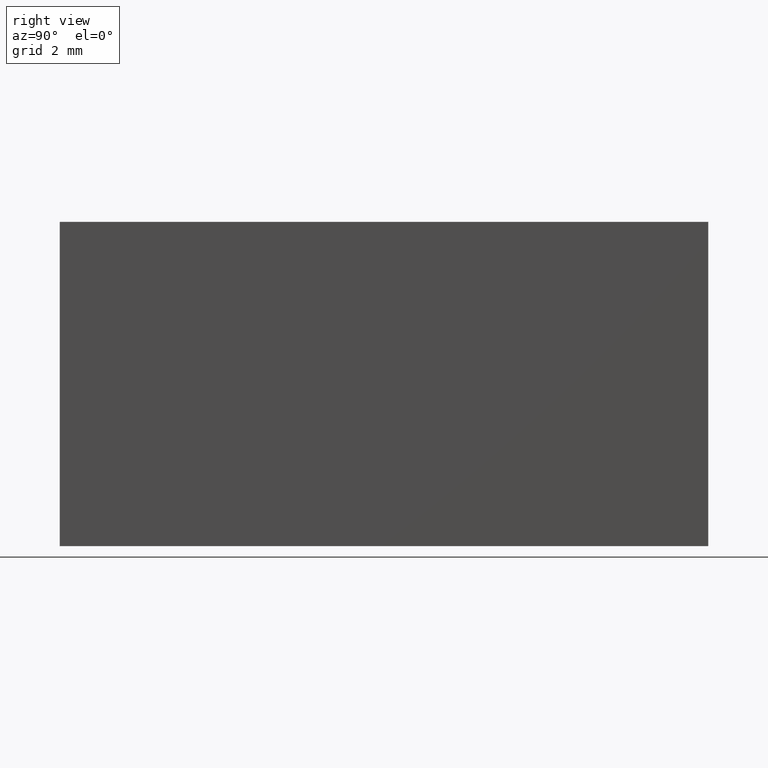
[diagram: clean part render]
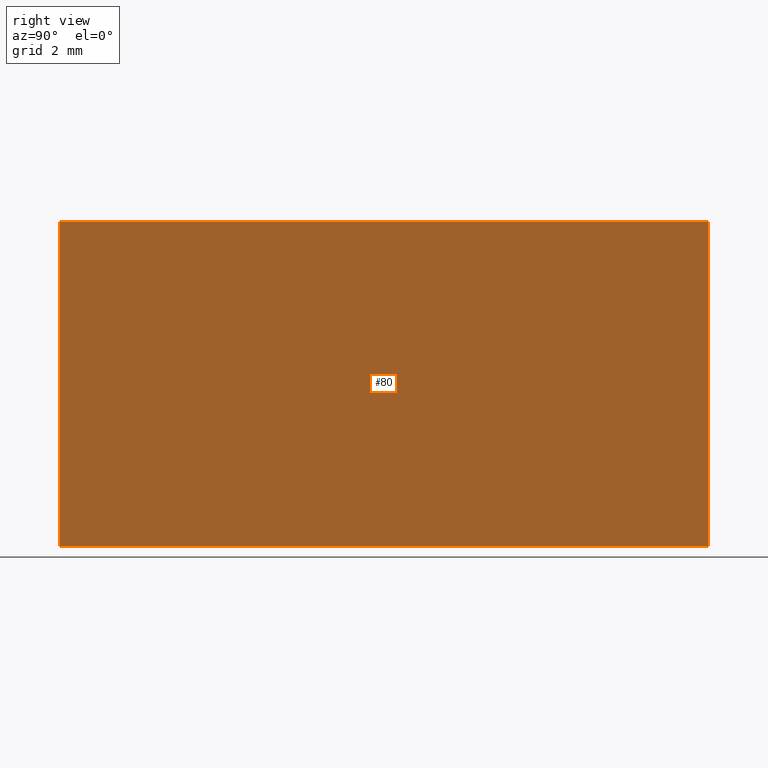
[diagram: same view with one face highlighted and labeled with its STEP entity id]
A machine part, right view. The second image highlights one B-rep face of the part: STEP entity #80.
In plain terms, the highlighted planar face has unit normal (-1, 0, 0).
Its self-contained STEP definition (entity closure, byte-faithful):
#11 = CARTESIAN_POINT ( 'NONE',  ( 0.0000000000000000000, 0.0000000000000000000, 0.0000000000000000000 ) ) ;
#12 = CARTESIAN_POINT ( 'NONE',  ( 0.0000000000000000000, 20.00000000000000000, 0.0000000000000000000 ) ) ;
#15 = CARTESIAN_POINT ( 'NONE',  ( 0.0000000000000000000, 0.0000000000000000000, 0.0000000000000000000 ) ) ;
#22 = VECTOR ( 'NONE', #32, 1000.000000000000000 ) ;
#27 = CARTESIAN_POINT ( 'NONE',  ( 6.123233995736766300E-016, 0.0000000000000000000, 10.00000000000000000 ) ) ;
#29 = DIRECTION ( 'NONE',  ( -0.0000000000000000000, -1.000000000000000000, -0.0000000000000000000 ) ) ;
#32 = DIRECTION ( 'NONE',  ( -6.123233995736766000E-017, -0.0000000000000000000, -1.000000000000000000 ) ) ;
#42 = CARTESIAN_POINT ( 'NONE',  ( 0.0000000000000000000, 20.00000000000000000, 0.0000000000000000000 ) ) ;
#44 = LINE ( 'NONE', #11, #22 ) ;
#57 = VERTEX_POINT ( 'NONE', #15 ) ;
#63 = CARTESIAN_POINT ( 'NONE',  ( 6.123233995736766300E-016, 20.00000000000000000, 10.00000000000000000 ) ) ;
#65 = ORIENTED_EDGE ( 'NONE', *, *, #149, .T. ) ;
#80 = ADVANCED_FACE ( 'NONE', ( #172 ), #112, .F. ) ;
#93 = EDGE_CURVE ( 'NONE', #157, #95, #148, .T. ) ;
#94 = LINE ( 'NONE', #105, #129 ) ;
#95 = VERTEX_POINT ( 'NONE', #142 ) ;
#100 = ORIENTED_EDGE ( 'NONE', *, *, #93, .F. ) ;
#101 = EDGE_CURVE ( 'NONE', #95, #57, #189, .T. ) ;
#105 = CARTESIAN_POINT ( 'NONE',  ( 6.123233995736766300E-016, 20.00000000000000000, 10.00000000000000000 ) ) ;
#109 = VECTOR ( 'NONE', #188, 1000.000000000000000 ) ;
#112 = PLANE ( 'NONE',  #161 ) ;
#124 = EDGE_LOOP ( 'NONE', ( #197, #132, #100, #65 ) ) ;
#129 = VECTOR ( 'NONE', #194, 1000.000000000000000 ) ;
#132 = ORIENTED_EDGE ( 'NONE', *, *, #101, .F. ) ;
#140 = VECTOR ( 'NONE', #29, 1000.000000000000000 ) ;
#142 = CARTESIAN_POINT ( 'NONE',  ( 0.0000000000000000000, 20.00000000000000000, 0.0000000000000000000 ) ) ;
#143 = DIRECTION ( 'NONE',  ( 6.123233995736766000E-017, 0.0000000000000000000, 1.000000000000000000 ) ) ;
#148 = LINE ( 'NONE', #153, #109 ) ;
#149 = EDGE_CURVE ( 'NONE', #157, #165, #94, .T. ) ;
#153 = CARTESIAN_POINT ( 'NONE',  ( 0.0000000000000000000, 20.00000000000000000, 0.0000000000000000000 ) ) ;
#157 = VERTEX_POINT ( 'NONE', #63 ) ;
#161 = AXIS2_PLACEMENT_3D ( 'NONE', #12, #171, #143 ) ;
#165 = VERTEX_POINT ( 'NONE', #27 ) ;
#168 = EDGE_CURVE ( 'NONE', #165, #57, #44, .T. ) ;
#171 = DIRECTION ( 'NONE',  ( -1.000000000000000000, 0.0000000000000000000, 6.123233995736766000E-017 ) ) ;
#172 = FACE_OUTER_BOUND ( 'NONE', #124, .T. ) ;
#188 = DIRECTION ( 'NONE',  ( -6.123233995736766000E-017, -0.0000000000000000000, -1.000000000000000000 ) ) ;
#189 = LINE ( 'NONE', #42, #140 ) ;
#194 = DIRECTION ( 'NONE',  ( -0.0000000000000000000, -1.000000000000000000, -0.0000000000000000000 ) ) ;
#197 = ORIENTED_EDGE ( 'NONE', *, *, #168, .T. ) ;